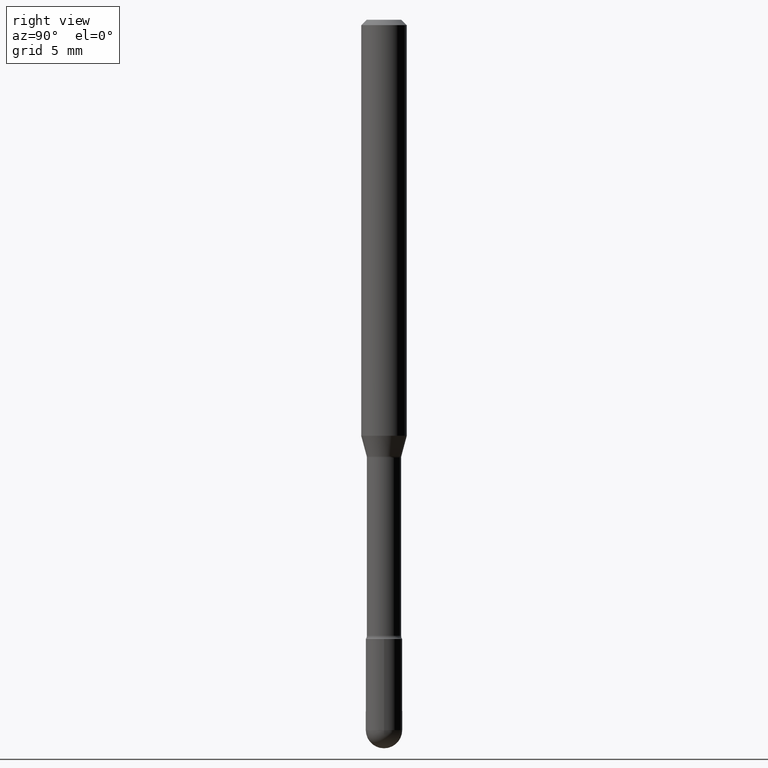
[diagram: clean part render]
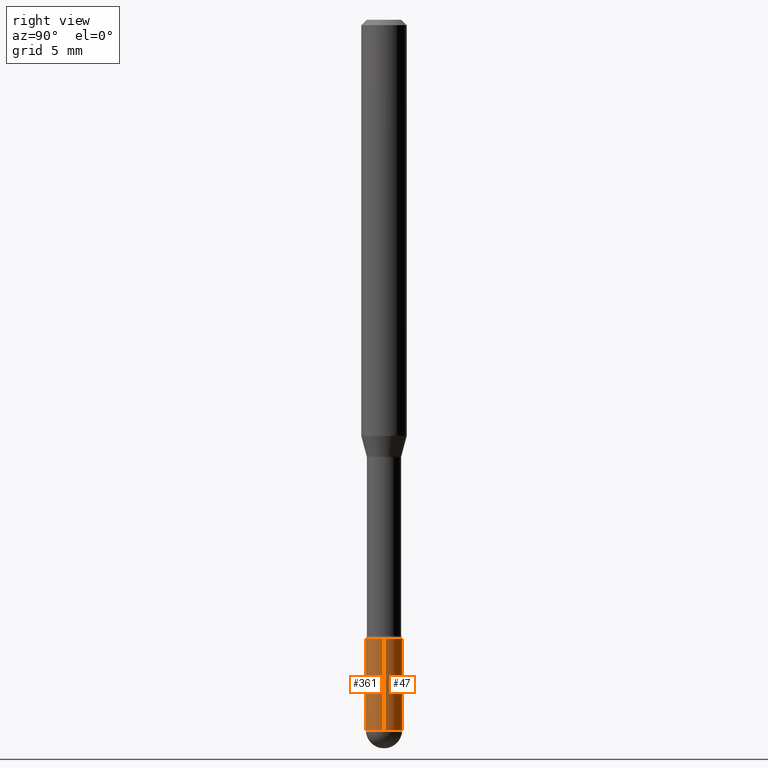
[diagram: same view with one multi-face feature highlighted, each face labeled with its STEP entity id]
A machine part, right view. The highlighted faces form ONE feature: a constant-radius fillet chain: 2 tangent blend faces with common blend radius 1.27 mm. The faces share edges in the B-rep.
Their STEP definitions:
[1] entity #361 (Cylinder):
#4 = CARTESIAN_POINT ( 'NONE',  ( 0.04999999999999999584, -3.491481338843132862E-16, 2.438088387897967896E-30 ) ) ;
#10 = DIRECTION ( 'NONE',  ( -2.445468806185136877E-29, 3.491481338843145188E-15, 1.000000000000000000 ) ) ;
#16 = EDGE_CURVE ( 'NONE', #275, #352, #330, .T. ) ;
#22 = ORIENTED_EDGE ( 'NONE', *, *, #165, .F. ) ;
#25 = DIRECTION ( 'NONE',  ( -2.445468806185136597E-29, 3.491481338843145583E-15, 1.000000000000000000 ) ) ;
#35 = DIRECTION ( 'NONE',  ( -2.445468806185136597E-29, 3.491481338843145583E-15, 1.000000000000000000 ) ) ;
#76 = VERTEX_POINT ( 'NONE', #354 ) ;
#92 = FACE_OUTER_BOUND ( 'NONE', #321, .T. ) ;
#105 = AXIS2_PLACEMENT_3D ( 'NONE', #136, #552, #170 ) ;
#106 = CIRCLE ( 'NONE', #526, 0.04999999999999999584 ) ;
#121 = ORIENTED_EDGE ( 'NONE', *, *, #325, .T. ) ;
#122 = DIRECTION ( 'NONE',  ( 1.000000000000000000, -6.982962677686275388E-15, 0.000000000000000000 ) ) ;
#123 = CARTESIAN_POINT ( 'NONE',  ( 0.04999999999999999584, -6.721101577273053797E-15, -1.949999999999999734 ) ) ;
#136 = CARTESIAN_POINT ( 'NONE',  ( 4.157296970514731878E-29, -5.935518276033347214E-15, -1.699999999999999956 ) ) ;
#146 = DIRECTION ( 'NONE',  ( -2.445468806185136877E-29, 3.491481338843145188E-15, 1.000000000000000000 ) ) ;
#157 = CARTESIAN_POINT ( 'NONE',  ( 4.768664172061015467E-29, -6.808388610744132920E-15, -1.949999999999999734 ) ) ;
#165 = EDGE_CURVE ( 'NONE', #76, #275, #432, .T. ) ;
#170 = DIRECTION ( 'NONE',  ( 1.000000000000000000, -6.982962677686274599E-15, 0.000000000000000000 ) ) ;
#177 = DIRECTION ( 'NONE',  ( 1.000000000000000000, -6.982962677686265922E-15, 4.876176775795936353E-29 ) ) ;
#196 = CIRCLE ( 'NONE', #392, 0.04999999999999999584 ) ;
#206 = ORIENTED_EDGE ( 'NONE', *, *, #16, .F. ) ;
#215 = CYLINDRICAL_SURFACE ( 'NONE', #537, 0.04999999999999999584 ) ;
#234 = EDGE_CURVE ( 'NONE', #445, #450, #106, .T. ) ;
#237 = ORIENTED_EDGE ( 'NONE', *, *, #234, .T. ) ;
#275 = VERTEX_POINT ( 'NONE', #343 ) ;
#277 = VECTOR ( 'NONE', #146, 39.37007874015748143 ) ;
#303 = CARTESIAN_POINT ( 'NONE',  ( -0.04999999999999999584, 3.552713678800500634E-16, -2.459467545127452961E-30 ) ) ;
#321 = EDGE_LOOP ( 'NONE', ( #22, #121, #237, #556, #206 ) ) ;
#325 = EDGE_CURVE ( 'NONE', #76, #445, #196, .T. ) ;
#326 = CARTESIAN_POINT ( 'NONE',  ( -3.552713678800023866E-16, -0.05000000000000680983, -1.949999999999999512 ) ) ;
#330 = CIRCLE ( 'NONE', #105, 0.05000000000000000278 ) ;
#343 = CARTESIAN_POINT ( 'NONE',  ( -0.05000000000000000278, -6.016682075508689264E-15, -1.699999999999999956 ) ) ;
#352 = VERTEX_POINT ( 'NONE', #475 ) ;
#354 = CARTESIAN_POINT ( 'NONE',  ( -0.04999999999999999584, -6.016682075508689264E-15, -1.949999999999999734 ) ) ;
#361 = ADVANCED_FACE ( 'NONE', ( #92 ), #215, .T. ) ;
#363 = DIRECTION ( 'NONE',  ( 1.000000000000000000, -6.982962677686275388E-15, 0.000000000000000000 ) ) ;
#385 = CARTESIAN_POINT ( 'NONE',  ( 0.000000000000000000, 0.000000000000000000, 0.000000000000000000 ) ) ;
#392 = AXIS2_PLACEMENT_3D ( 'NONE', #157, #402, #363 ) ;
#402 = DIRECTION ( 'NONE',  ( -2.445468806185136597E-29, 3.491481338843145583E-15, 1.000000000000000000 ) ) ;
#432 = LINE ( 'NONE', #303, #277 ) ;
#445 = VERTEX_POINT ( 'NONE', #326 ) ;
#450 = VERTEX_POINT ( 'NONE', #123 ) ;
#475 = CARTESIAN_POINT ( 'NONE',  ( 0.05000000000000000278, -6.284666409917660550E-15, -1.699999999999999956 ) ) ;
#507 = CARTESIAN_POINT ( 'NONE',  ( 4.768664172061015467E-29, -6.808388610744132920E-15, -1.949999999999999734 ) ) ;
#511 = LINE ( 'NONE', #4, #532 ) ;
#525 = EDGE_CURVE ( 'NONE', #450, #352, #511, .T. ) ;
#526 = AXIS2_PLACEMENT_3D ( 'NONE', #507, #25, #122 ) ;
#532 = VECTOR ( 'NONE', #10, 39.37007874015748143 ) ;
#537 = AXIS2_PLACEMENT_3D ( 'NONE', #385, #35, #177 ) ;
#552 = DIRECTION ( 'NONE',  ( -2.445468806185136597E-29, 3.491481338843145583E-15, 1.000000000000000000 ) ) ;
#556 = ORIENTED_EDGE ( 'NONE', *, *, #525, .T. ) ;
[2] entity #47 (Cylinder):
#4 = CARTESIAN_POINT ( 'NONE',  ( 0.04999999999999999584, -3.491481338843132862E-16, 2.438088387897967896E-30 ) ) ;
#10 = DIRECTION ( 'NONE',  ( -2.445468806185136877E-29, 3.491481338843145188E-15, 1.000000000000000000 ) ) ;
#47 = ADVANCED_FACE ( 'NONE', ( #307 ), #404, .T. ) ;
#76 = VERTEX_POINT ( 'NONE', #354 ) ;
#77 = DIRECTION ( 'NONE',  ( 1.000000000000000000, -6.982962677686275388E-15, 0.000000000000000000 ) ) ;
#78 = ORIENTED_EDGE ( 'NONE', *, *, #165, .T. ) ;
#84 = AXIS2_PLACEMENT_3D ( 'NONE', #113, #304, #272 ) ;
#113 = CARTESIAN_POINT ( 'NONE',  ( 0.000000000000000000, 0.000000000000000000, 0.000000000000000000 ) ) ;
#115 = ORIENTED_EDGE ( 'NONE', *, *, #200, .T. ) ;
#123 = CARTESIAN_POINT ( 'NONE',  ( 0.04999999999999999584, -6.721101577273053797E-15, -1.949999999999999734 ) ) ;
#126 = CARTESIAN_POINT ( 'NONE',  ( 4.157296970514731878E-29, -5.935518276033347214E-15, -1.699999999999999956 ) ) ;
#133 = EDGE_CURVE ( 'NONE', #450, #214, #547, .T. ) ;
#143 = DIRECTION ( 'NONE',  ( -2.445468806185136597E-29, 3.491481338843145583E-15, 1.000000000000000000 ) ) ;
#146 = DIRECTION ( 'NONE',  ( -2.445468806185136877E-29, 3.491481338843145188E-15, 1.000000000000000000 ) ) ;
#147 = AXIS2_PLACEMENT_3D ( 'NONE', #126, #287, #387 ) ;
#161 = ORIENTED_EDGE ( 'NONE', *, *, #133, .T. ) ;
#165 = EDGE_CURVE ( 'NONE', #76, #275, #432, .T. ) ;
#178 = CARTESIAN_POINT ( 'NONE',  ( 4.768664172061015467E-29, -6.808388610744132920E-15, -1.949999999999999734 ) ) ;
#200 = EDGE_CURVE ( 'NONE', #214, #76, #236, .T. ) ;
#214 = VERTEX_POINT ( 'NONE', #545 ) ;
#236 = CIRCLE ( 'NONE', #344, 0.04999999999999999584 ) ;
#241 = CARTESIAN_POINT ( 'NONE',  ( 4.768664172061015467E-29, -6.808388610744132920E-15, -1.949999999999999734 ) ) ;
#272 = DIRECTION ( 'NONE',  ( 1.000000000000000000, -6.982962677686265922E-15, 4.876176775795936353E-29 ) ) ;
#275 = VERTEX_POINT ( 'NONE', #343 ) ;
#277 = VECTOR ( 'NONE', #146, 39.37007874015748143 ) ;
#283 = ORIENTED_EDGE ( 'NONE', *, *, #434, .F. ) ;
#287 = DIRECTION ( 'NONE',  ( -2.445468806185136597E-29, 3.491481338843145583E-15, 1.000000000000000000 ) ) ;
#303 = CARTESIAN_POINT ( 'NONE',  ( -0.04999999999999999584, 3.552713678800500634E-16, -2.459467545127452961E-30 ) ) ;
#304 = DIRECTION ( 'NONE',  ( -2.445468806185136597E-29, 3.491481338843145583E-15, 1.000000000000000000 ) ) ;
#307 = FACE_OUTER_BOUND ( 'NONE', #448, .T. ) ;
#334 = CIRCLE ( 'NONE', #147, 0.05000000000000000278 ) ;
#343 = CARTESIAN_POINT ( 'NONE',  ( -0.05000000000000000278, -6.016682075508689264E-15, -1.699999999999999956 ) ) ;
#344 = AXIS2_PLACEMENT_3D ( 'NONE', #241, #501, #77 ) ;
#352 = VERTEX_POINT ( 'NONE', #475 ) ;
#354 = CARTESIAN_POINT ( 'NONE',  ( -0.04999999999999999584, -6.016682075508689264E-15, -1.949999999999999734 ) ) ;
#372 = AXIS2_PLACEMENT_3D ( 'NONE', #178, #143, #521 ) ;
#387 = DIRECTION ( 'NONE',  ( 1.000000000000000000, -6.982962677686274599E-15, 0.000000000000000000 ) ) ;
#404 = CYLINDRICAL_SURFACE ( 'NONE', #84, 0.04999999999999999584 ) ;
#430 = ORIENTED_EDGE ( 'NONE', *, *, #525, .F. ) ;
#432 = LINE ( 'NONE', #303, #277 ) ;
#434 = EDGE_CURVE ( 'NONE', #352, #275, #334, .T. ) ;
#448 = EDGE_LOOP ( 'NONE', ( #115, #78, #283, #430, #161 ) ) ;
#450 = VERTEX_POINT ( 'NONE', #123 ) ;
#475 = CARTESIAN_POINT ( 'NONE',  ( 0.05000000000000000278, -6.284666409917660550E-15, -1.699999999999999956 ) ) ;
#501 = DIRECTION ( 'NONE',  ( -2.445468806185136597E-29, 3.491481338843145583E-15, 1.000000000000000000 ) ) ;
#511 = LINE ( 'NONE', #4, #532 ) ;
#521 = DIRECTION ( 'NONE',  ( 1.000000000000000000, -6.982962677686275388E-15, 0.000000000000000000 ) ) ;
#525 = EDGE_CURVE ( 'NONE', #450, #352, #511, .T. ) ;
#532 = VECTOR ( 'NONE', #10, 39.37007874015748143 ) ;
#545 = CARTESIAN_POINT ( 'NONE',  ( 3.491481338843609137E-16, 0.04999999999999318184, -1.949999999999999956 ) ) ;
#547 = CIRCLE ( 'NONE', #372, 0.04999999999999999584 ) ;